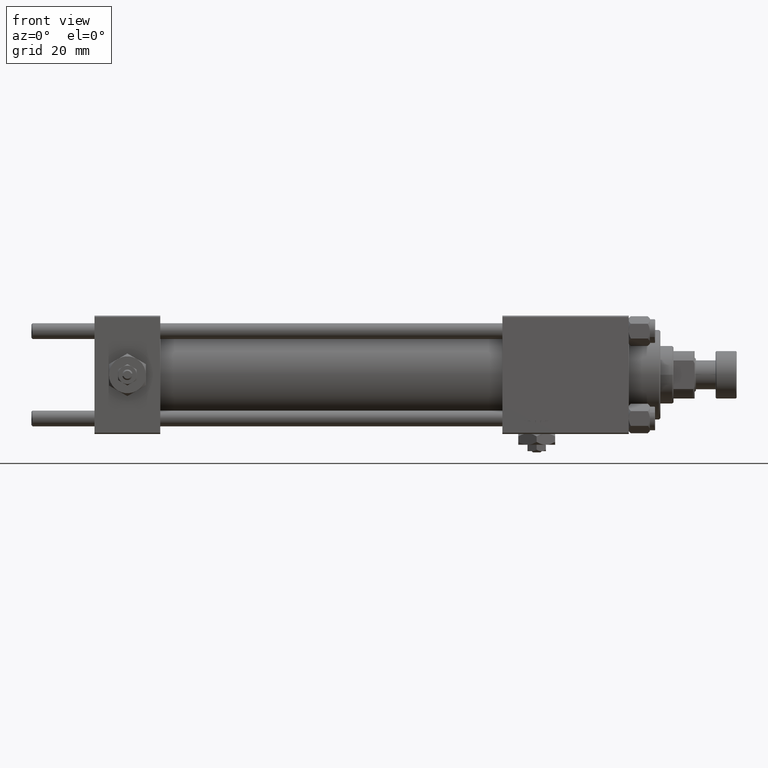
[diagram: clean part render]
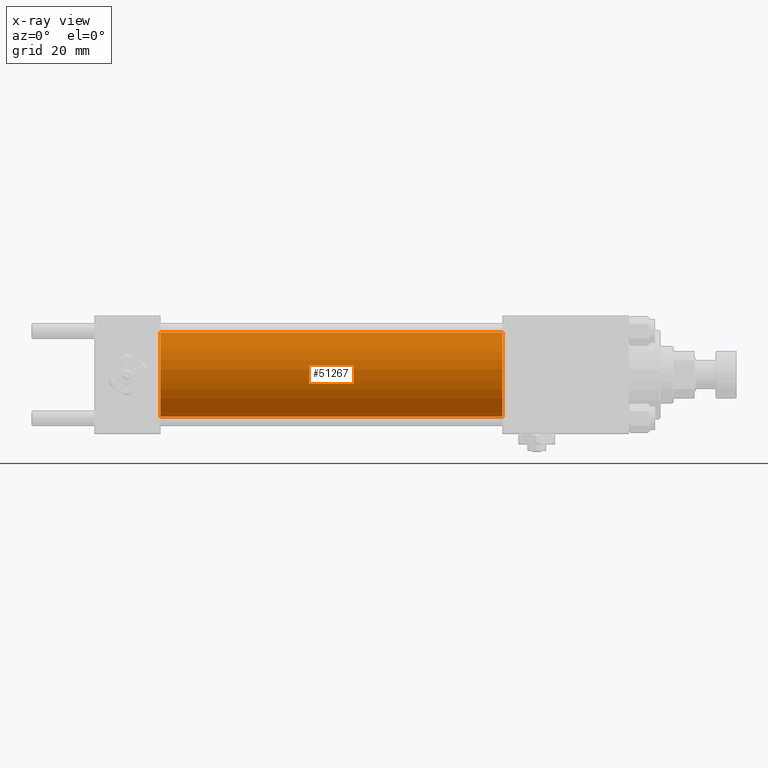
[diagram: x-ray — body ghosted, one internal face saturated and labeled with its STEP entity id]
A machine part, front view, then the same camera in x-ray: the body is ghosted and one INTERNAL B-rep face — a face not visible from any outside direction — is saturated and labeled: STEP entity #51267.
In plain terms, the highlighted cylindrical surface (partial cylindrical patch) has radius 16 mm, axis along (-1, -0, -0).
Its self-contained STEP definition (entity closure, byte-faithful):
#363 = LINE ( 'NONE', #43757, #17543 ) ;
#499 = DIRECTION ( 'NONE',  ( 1.000000000000000000, 0.000000000000000000, 0.000000000000000000 ) ) ;
#691 = CARTESIAN_POINT ( 'NONE',  ( 155.0000000000000000, 0.000000000000000000, 16.00000000000000000 ) ) ;
#2580 = DIRECTION ( 'NONE',  ( -1.000000000000000000, -0.000000000000000000, -0.000000000000000000 ) ) ;
#4065 = DIRECTION ( 'NONE',  ( -1.000000000000000000, -0.000000000000000000, -0.000000000000000000 ) ) ;
#4416 = EDGE_CURVE ( 'NONE', #28064, #13520, #363, .T. ) ;
#6545 = CYLINDRICAL_SURFACE ( 'NONE', #7897, 16.00000000000000000 ) ;
#7115 = LINE ( 'NONE', #35397, #18982 ) ;
#7755 = ORIENTED_EDGE ( 'NONE', *, *, #35936, .T. ) ;
#7897 = AXIS2_PLACEMENT_3D ( 'NONE', #38025, #2580, #51205 ) ;
#8426 = CARTESIAN_POINT ( 'NONE',  ( 25.00000000000000000, 1.959434878635765131E-15, -16.00000000000000000 ) ) ;
#8823 = CIRCLE ( 'NONE', #38392, 16.00000000000000000 ) ;
#13520 = VERTEX_POINT ( 'NONE', #29580 ) ;
#14010 = ORIENTED_EDGE ( 'NONE', *, *, #35657, .F. ) ;
#17543 = VECTOR ( 'NONE', #4065, 1000.000000000000000 ) ;
#18487 = DIRECTION ( 'NONE',  ( 1.000000000000000000, 0.000000000000000000, 0.000000000000000000 ) ) ;
#18982 = VECTOR ( 'NONE', #38849, 1000.000000000000000 ) ;
#19955 = EDGE_LOOP ( 'NONE', ( #32834, #7755, #14010, #32866 ) ) ;
#21399 = DIRECTION ( 'NONE',  ( 0.000000000000000000, 0.000000000000000000, -1.000000000000000000 ) ) ;
#27242 = AXIS2_PLACEMENT_3D ( 'NONE', #40690, #499, #48361 ) ;
#28064 = VERTEX_POINT ( 'NONE', #691 ) ;
#29580 = CARTESIAN_POINT ( 'NONE',  ( 25.00000000000000000, 0.000000000000000000, 16.00000000000000000 ) ) ;
#32834 = ORIENTED_EDGE ( 'NONE', *, *, #46877, .T. ) ;
#32866 = ORIENTED_EDGE ( 'NONE', *, *, #4416, .F. ) ;
#34971 = CARTESIAN_POINT ( 'NONE',  ( 155.0000000000000000, 1.959434878635765131E-15, -16.00000000000000000 ) ) ;
#35091 = FACE_OUTER_BOUND ( 'NONE', #19955, .T. ) ;
#35397 = CARTESIAN_POINT ( 'NONE',  ( 155.0000000000000000, 1.959434878635765131E-15, -16.00000000000000000 ) ) ;
#35657 = EDGE_CURVE ( 'NONE', #13520, #37821, #8823, .T. ) ;
#35936 = EDGE_CURVE ( 'NONE', #47662, #37821, #7115, .T. ) ;
#37821 = VERTEX_POINT ( 'NONE', #8426 ) ;
#38025 = CARTESIAN_POINT ( 'NONE',  ( 155.0000000000000000, 0.000000000000000000, 0.000000000000000000 ) ) ;
#38392 = AXIS2_PLACEMENT_3D ( 'NONE', #50488, #18487, #21399 ) ;
#38849 = DIRECTION ( 'NONE',  ( -1.000000000000000000, -0.000000000000000000, -0.000000000000000000 ) ) ;
#40690 = CARTESIAN_POINT ( 'NONE',  ( 155.0000000000000000, 0.000000000000000000, 0.000000000000000000 ) ) ;
#42375 = CIRCLE ( 'NONE', #27242, 16.00000000000000000 ) ;
#43757 = CARTESIAN_POINT ( 'NONE',  ( 155.0000000000000000, 0.000000000000000000, 16.00000000000000000 ) ) ;
#46877 = EDGE_CURVE ( 'NONE', #28064, #47662, #42375, .T. ) ;
#47662 = VERTEX_POINT ( 'NONE', #34971 ) ;
#48361 = DIRECTION ( 'NONE',  ( 0.000000000000000000, 0.000000000000000000, -1.000000000000000000 ) ) ;
#50488 = CARTESIAN_POINT ( 'NONE',  ( 25.00000000000000000, 0.000000000000000000, 0.000000000000000000 ) ) ;
#51205 = DIRECTION ( 'NONE',  ( 0.000000000000000000, 0.000000000000000000, 1.000000000000000000 ) ) ;
#51267 = ADVANCED_FACE ( 'NONE', ( #35091 ), #6545, .F. ) ;